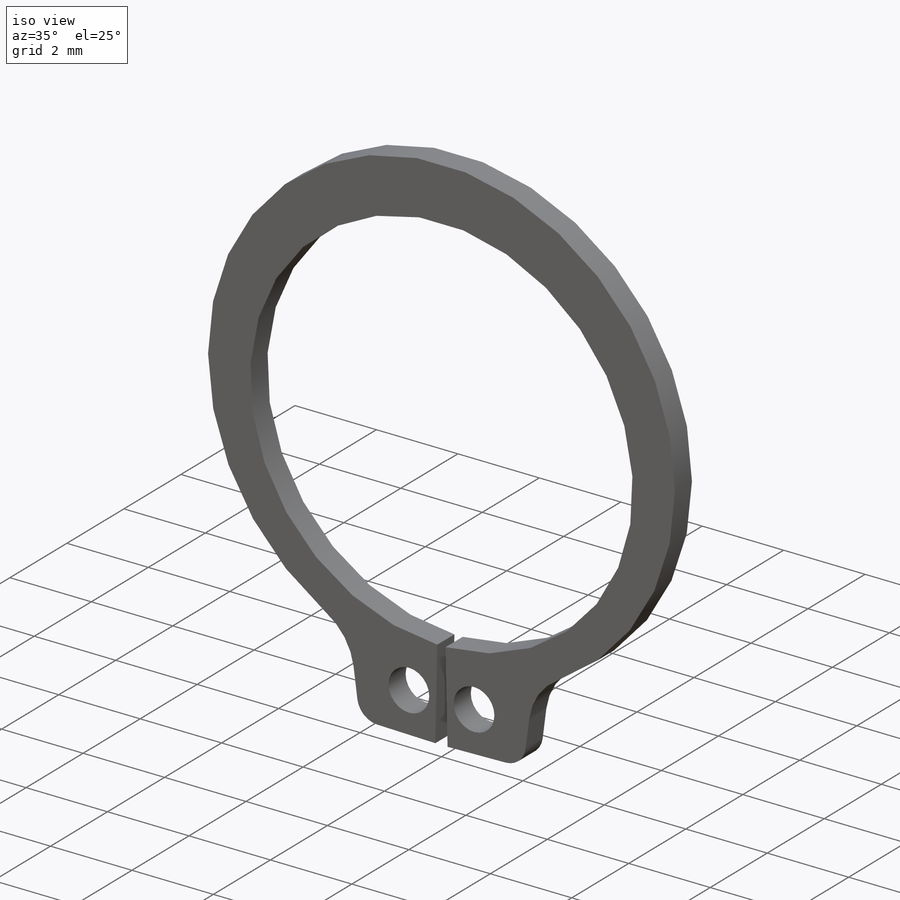
[diagram: iso view]
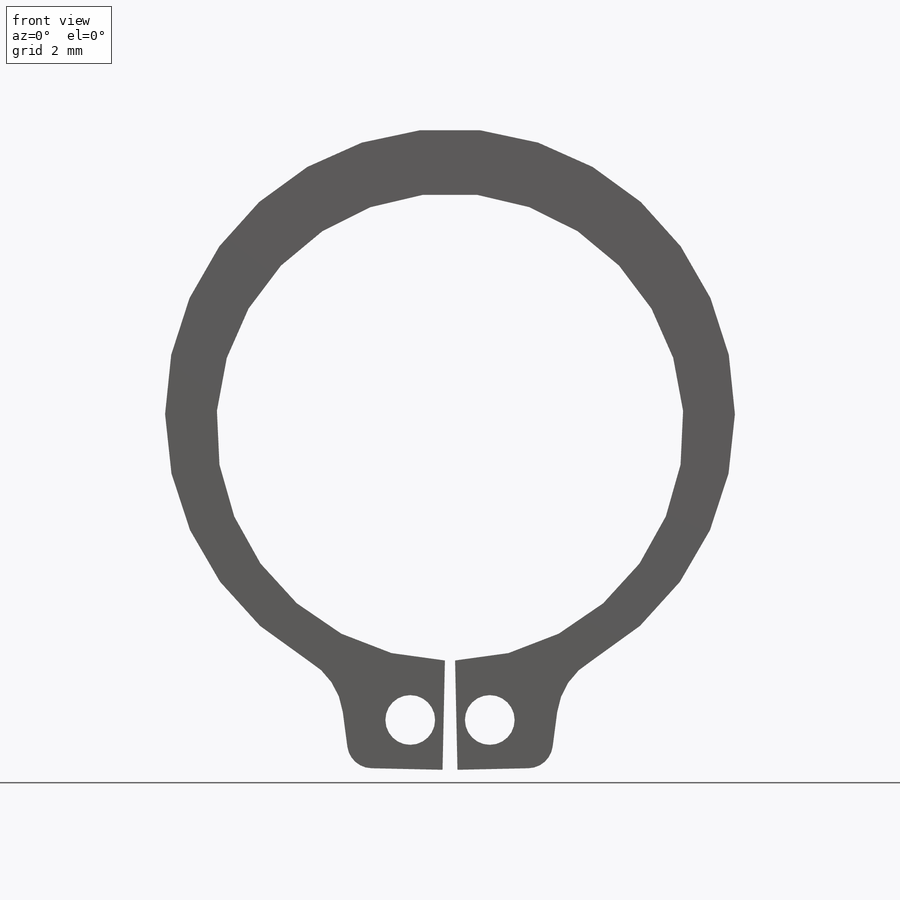
[diagram: front view]
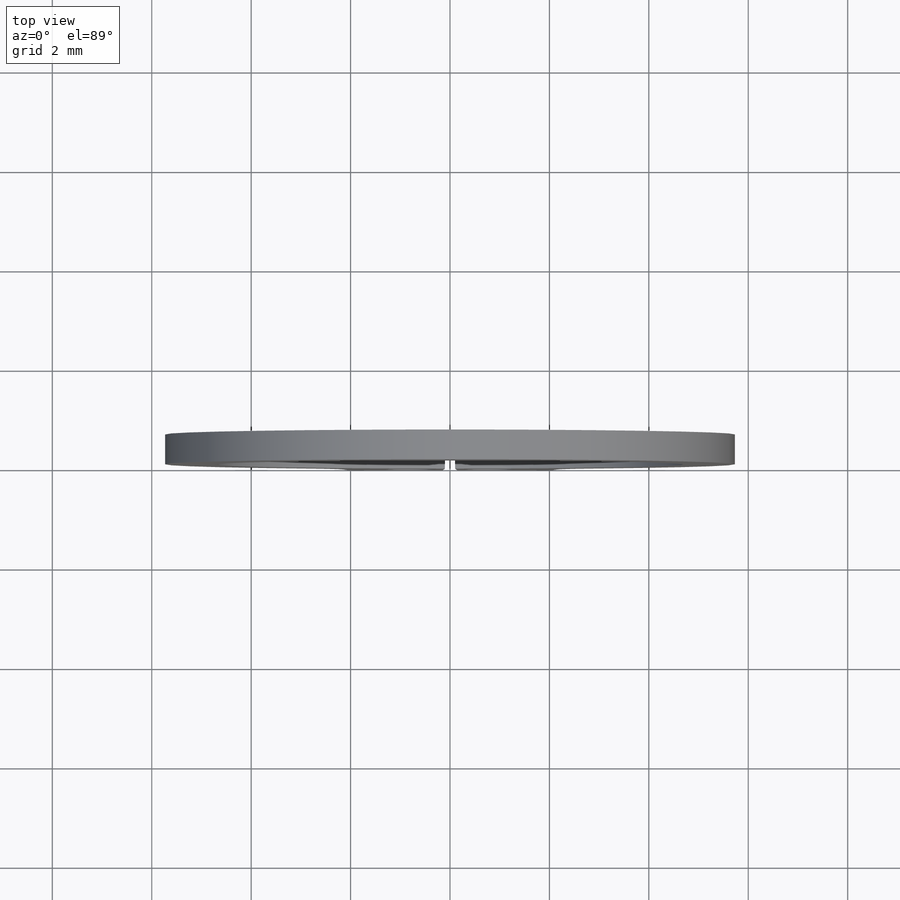
[diagram: top view]
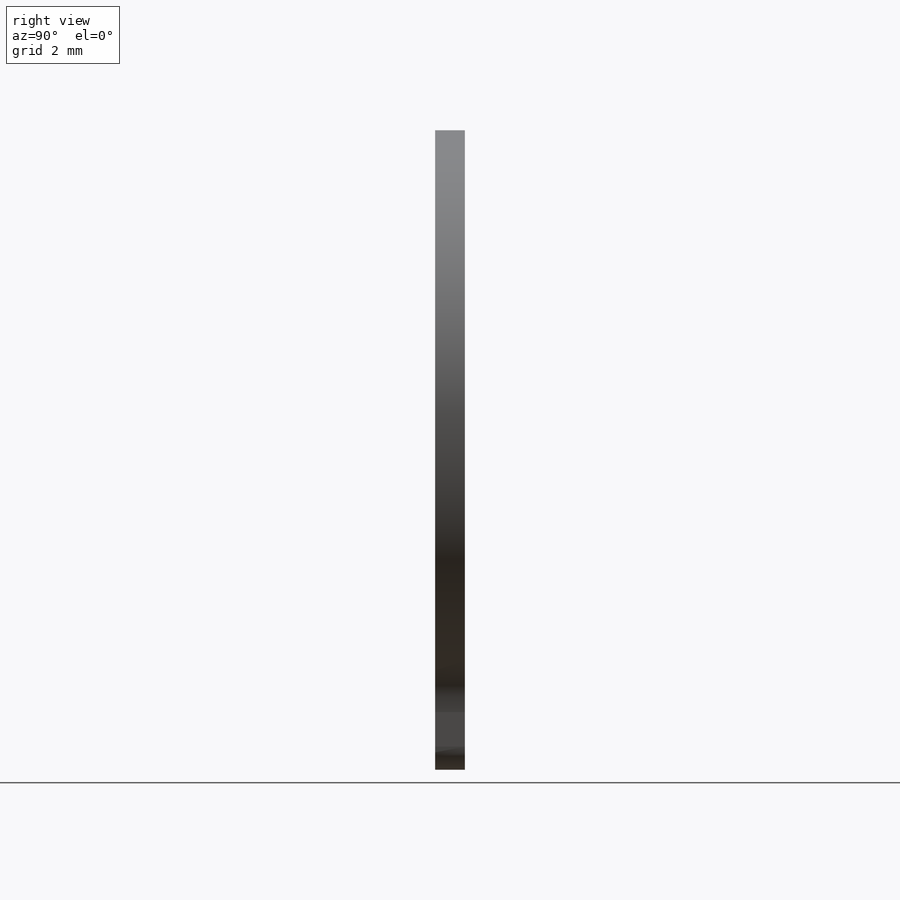
[diagram: right view]
SOLIDWORKS PART (.sldprt)
format: sldprt  version: not decoded by parser v0  size: 178,176 bytes
history: native  units: mm
features: cut_extrude x4, plane x3, sketch x3, material x1, extrude x1 (+12 scaffold rows collapsed; 1 parser-record rows omitted)
feature tree (25):
  parser-record x1  (decoder bookkeeping rows leaked as tree rows — omitted from the tree; the rows remain in map.json)
  scaffold x12  (default folders/planes/origin — collapsed)
  material  "Material <not specified>"
  plane  "Plane1"
  plane  "Plane2"
  plane  "Plane3"
  sketch  "Clipboard"  dims[HoleDia=1.0mm ShaftDia=10.0mm LargeSection=1.3mm SmallSection=0.8mm LugSection=2.2mm]
  sketch  "BodySke"  dims[c1.GrooveDia=9.4mm c1.OutsideDia=~4.355353mm c1.TipRad=~0.23622mm c1.D3=2.6924mm c1.LugRad=6.9mm c1.HoleOffsetRad=5.95mm c1.HoleDia=1.0mm c2.D3=0.5mm c2.CavityRad=~1.532653mm c2.CavityWidth=3.0861mm c2.D1=~5.632972mm c3.D1=10.0deg c3.D2=~1.961375mm c4.D2=15.0deg c4.LargeRad=6.0mm c4.SmallRad=5.5mm c4.Gap=0.4445mm c4.D1=7.239mm c4.SmallAngle=~61.816281deg c5.D2=~3.638241mm c6.D2=15.0deg c6.HoleSpacing=1.6mm c6.Gap=0.4445mm c6.D1=2.5654mm c7.D1=~3.518715deg c7.Gap=0.3mm]
  extrude  "Body"  Depth=0.6mm Thickness=0.6mm
  sketch  "NotSke"
  cut_extrude  "Notch"  [1 undecoded]
  cut_extrude  "ConfigurationName"  Depth=1 CopiedFlag=1
  cut_extrude  "PartNumberID"  [1 undecoded]
  cut_extrude  "ConfigurationName"  Depth=0 CopiedFlag=0
decode coverage: 5 of 8 modeling features carry decoded parameters
note: ~ marks probable driven/reference dimensions
note: 2 parameter values undecoded
note: suppression state not decoded; provenance and decode notes live in map.json
